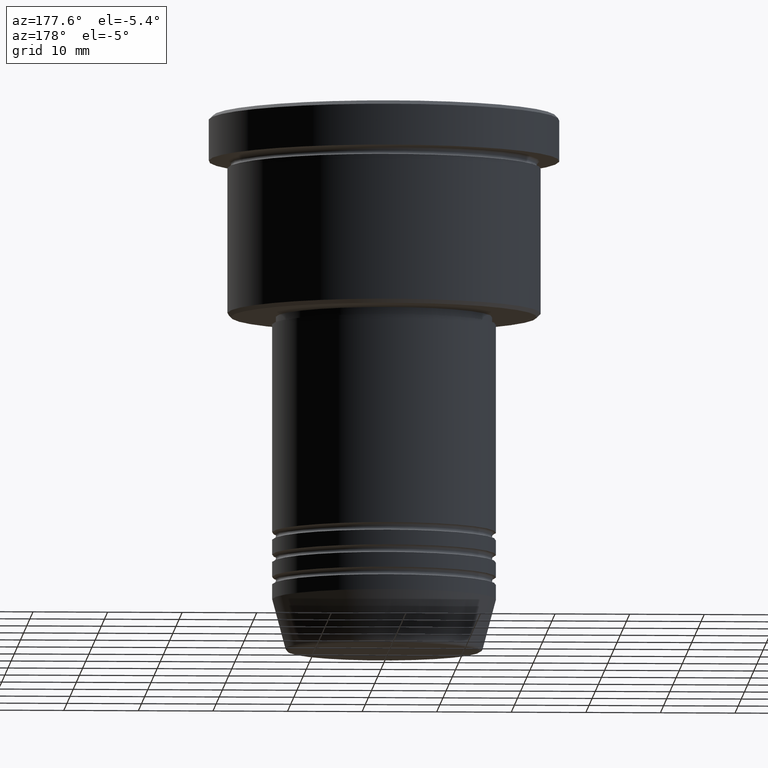
[diagram: clean part render]
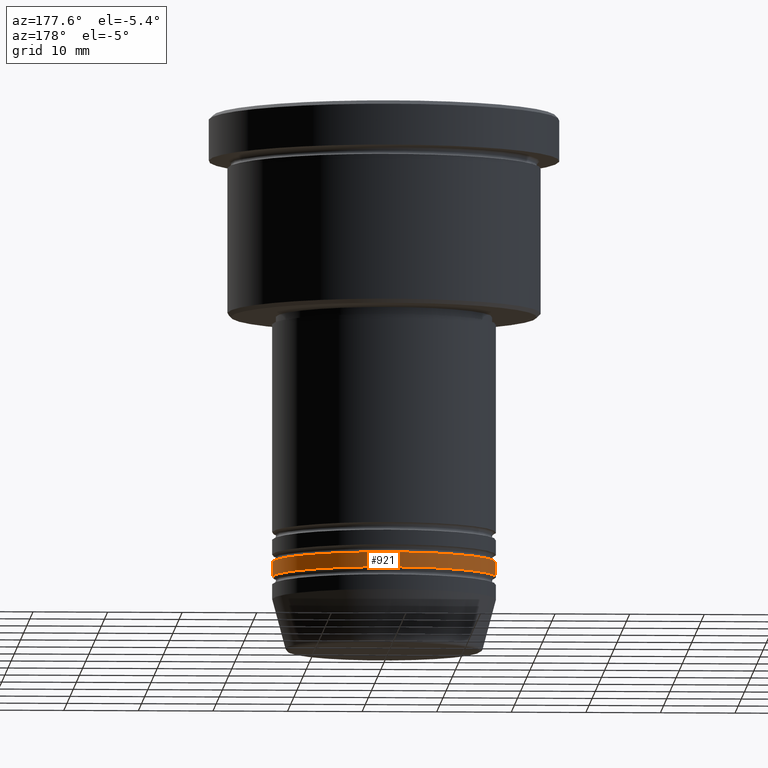
[diagram: same view with one face highlighted and labeled with its STEP entity id]
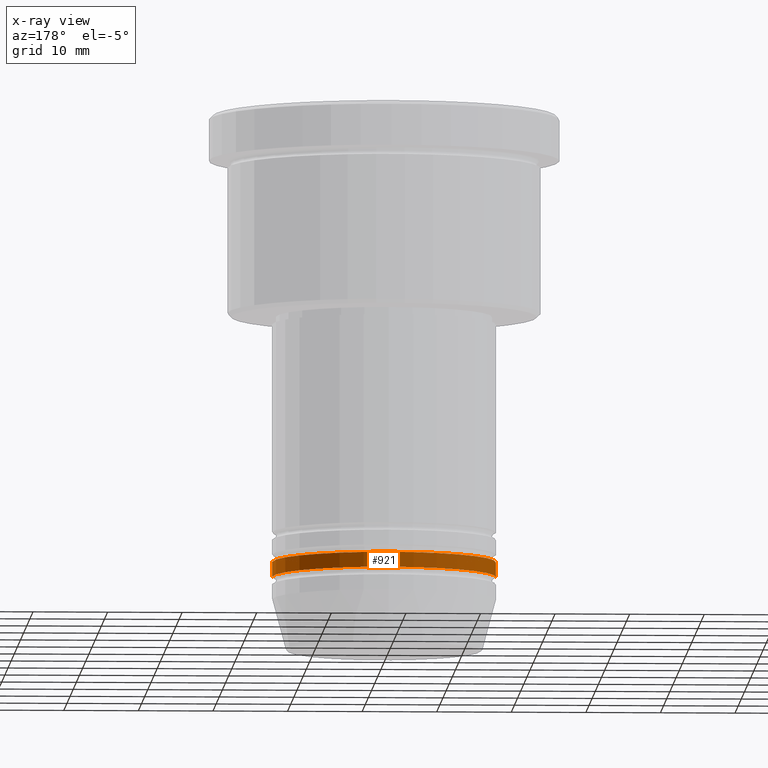
[diagram: x-ray of the same camera — body ghosted, the highlighted face saturated]
A machine part, auxiliary view. The second image highlights one B-rep face of the part: STEP entity #921.
The next image is the same camera in x-ray: the body ghosted, the highlighted face saturated — about 0% of this face is hidden behind the body in this view.
In plain terms, the highlighted cylindrical surface (partial cylindrical patch) has radius 15 mm, axis along (-0, -0, 1).
Its self-contained STEP definition (entity closure, byte-faithful):
#79 = CARTESIAN_POINT ( 'NONE',  ( 15.00000000000000000, 0.000000000000000000, -61.99999999999998579 ) ) ;
#99 = CARTESIAN_POINT ( 'NONE',  ( 15.00000000000000000, 0.000000000000000000, 0.000000000000000000 ) ) ;
#133 = DIRECTION ( 'NONE',  ( -0.000000000000000000, -0.000000000000000000, 1.000000000000000000 ) ) ;
#145 = VERTEX_POINT ( 'NONE', #79 ) ;
#167 = CIRCLE ( 'NONE', #486, 15.00000000000000000 ) ;
#231 = CARTESIAN_POINT ( 'NONE',  ( 0.000000000000000000, 0.000000000000000000, -61.99999999999998579 ) ) ;
#259 = DIRECTION ( 'NONE',  ( -0.000000000000000000, -0.000000000000000000, 1.000000000000000000 ) ) ;
#291 = VERTEX_POINT ( 'NONE', #670 ) ;
#350 = EDGE_CURVE ( 'NONE', #1077, #677, #167, .T. ) ;
#409 = AXIS2_PLACEMENT_3D ( 'NONE', #231, #590, #586 ) ;
#451 = CYLINDRICAL_SURFACE ( 'NONE', #1106, 15.00000000000000000 ) ;
#486 = AXIS2_PLACEMENT_3D ( 'NONE', #607, #133, #613 ) ;
#532 = EDGE_LOOP ( 'NONE', ( #587, #730, #962, #811 ) ) ;
#536 = FACE_OUTER_BOUND ( 'NONE', #532, .T. ) ;
#561 = CIRCLE ( 'NONE', #409, 15.00000000000000000 ) ;
#579 = CARTESIAN_POINT ( 'NONE',  ( 15.00000000000000000, 0.000000000000000000, -59.99999999999998579 ) ) ;
#583 = DIRECTION ( 'NONE',  ( -0.000000000000000000, -0.000000000000000000, 1.000000000000000000 ) ) ;
#586 = DIRECTION ( 'NONE',  ( 1.000000000000000000, 0.000000000000000000, 0.000000000000000000 ) ) ;
#587 = ORIENTED_EDGE ( 'NONE', *, *, #1176, .T. ) ;
#588 = CARTESIAN_POINT ( 'NONE',  ( -15.00000000000000000, 1.836970198721029589E-15, -59.99999999999998579 ) ) ;
#590 = DIRECTION ( 'NONE',  ( -0.000000000000000000, -0.000000000000000000, 1.000000000000000000 ) ) ;
#607 = CARTESIAN_POINT ( 'NONE',  ( 0.000000000000000000, 0.000000000000000000, -59.99999999999998579 ) ) ;
#613 = DIRECTION ( 'NONE',  ( 1.000000000000000000, 0.000000000000000000, 0.000000000000000000 ) ) ;
#666 = LINE ( 'NONE', #99, #687 ) ;
#670 = CARTESIAN_POINT ( 'NONE',  ( -15.00000000000000000, 1.836970198721029589E-15, -61.99999999999998579 ) ) ;
#675 = VECTOR ( 'NONE', #1109, 1000.000000000000000 ) ;
#677 = VERTEX_POINT ( 'NONE', #588 ) ;
#687 = VECTOR ( 'NONE', #583, 1000.000000000000000 ) ;
#692 = EDGE_CURVE ( 'NONE', #145, #1077, #666, .T. ) ;
#712 = CARTESIAN_POINT ( 'NONE',  ( 0.000000000000000000, 0.000000000000000000, 0.000000000000000000 ) ) ;
#730 = ORIENTED_EDGE ( 'NONE', *, *, #1087, .T. ) ;
#757 = LINE ( 'NONE', #824, #675 ) ;
#805 = DIRECTION ( 'NONE',  ( 1.000000000000000000, 0.000000000000000000, 0.000000000000000000 ) ) ;
#811 = ORIENTED_EDGE ( 'NONE', *, *, #692, .F. ) ;
#824 = CARTESIAN_POINT ( 'NONE',  ( -15.00000000000000000, 1.836970198721029589E-15, 0.000000000000000000 ) ) ;
#921 = ADVANCED_FACE ( 'NONE', ( #536 ), #451, .T. ) ;
#962 = ORIENTED_EDGE ( 'NONE', *, *, #350, .F. ) ;
#1077 = VERTEX_POINT ( 'NONE', #579 ) ;
#1087 = EDGE_CURVE ( 'NONE', #291, #677, #757, .T. ) ;
#1106 = AXIS2_PLACEMENT_3D ( 'NONE', #712, #259, #805 ) ;
#1109 = DIRECTION ( 'NONE',  ( -0.000000000000000000, -0.000000000000000000, 1.000000000000000000 ) ) ;
#1176 = EDGE_CURVE ( 'NONE', #145, #291, #561, .T. ) ;